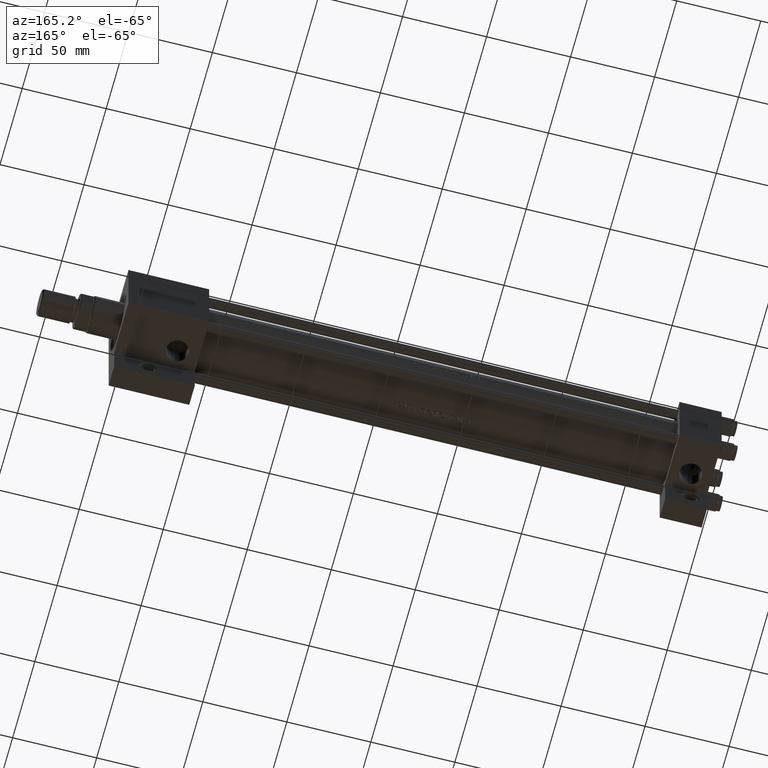
[diagram: clean part render]
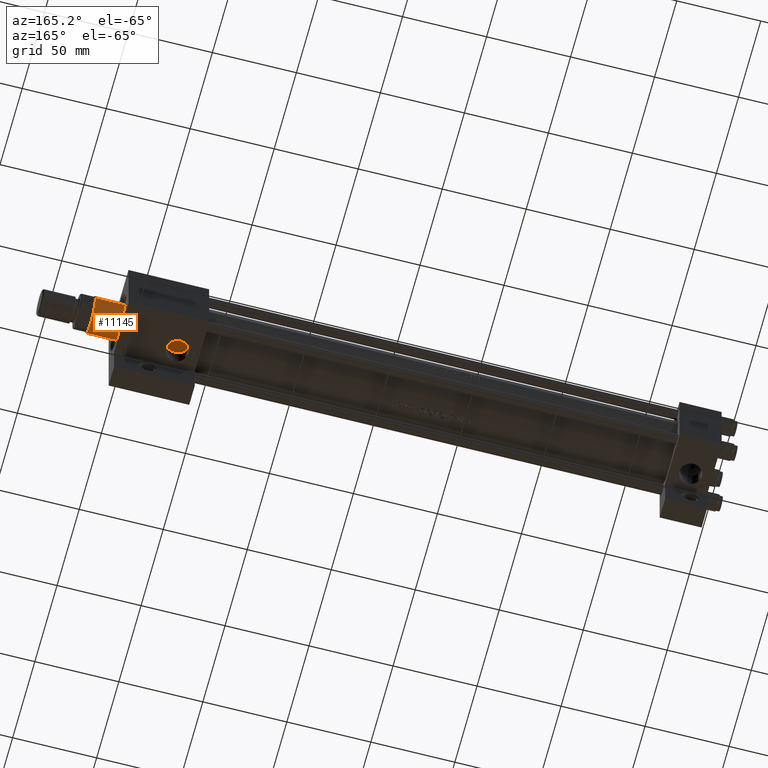
[diagram: same view with one face highlighted and labeled with its STEP entity id]
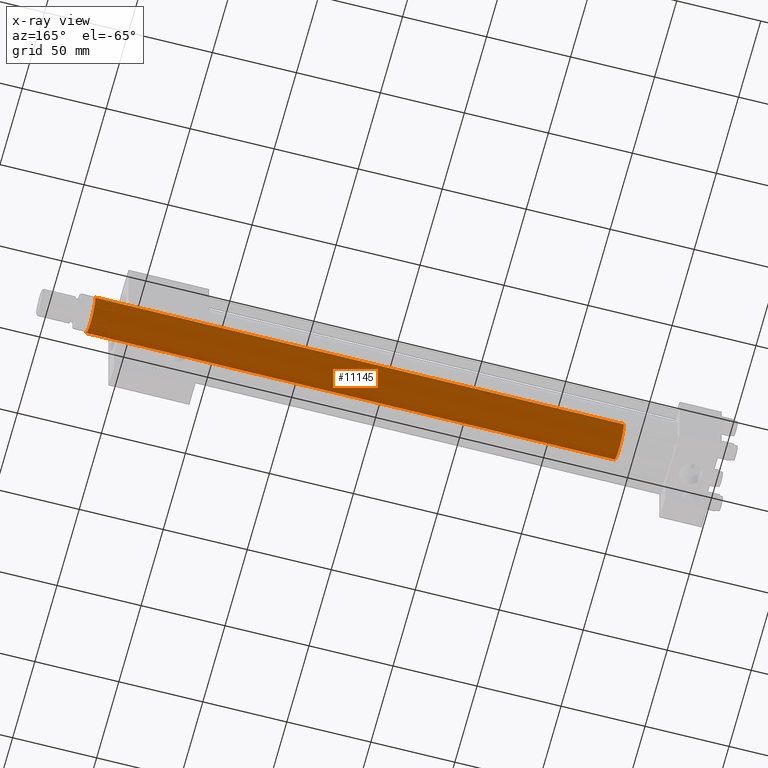
[diagram: x-ray of the same camera — body ghosted, the highlighted face saturated]
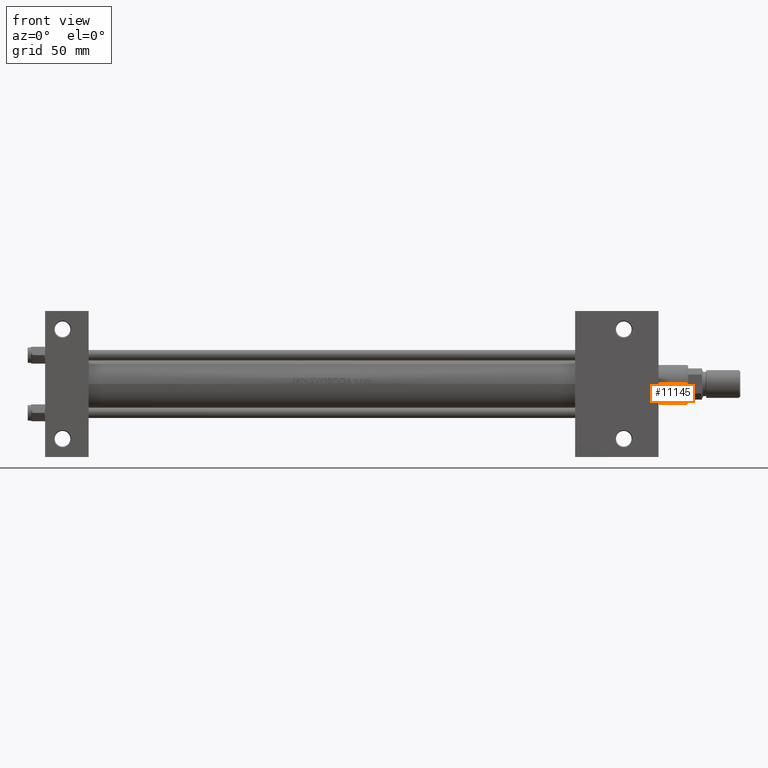
[diagram: same view with one face highlighted and labeled with its STEP entity id]
A machine part, auxiliary view. The second image highlights one B-rep face of the part: STEP entity #11145.
The next image is the same camera in x-ray: the body ghosted, the highlighted face saturated — about 0% of this face is hidden behind the body in this view.
A second angle (front view) of the same face is appended — the face is thin or edge-on in the first view.
In plain terms, the highlighted cylindrical surface (edge-blend (fillet) strip) has radius 11 mm, axis along (-1, 0, 0).
Its self-contained STEP definition (entity closure, byte-faithful):
#1825 = ORIENTED_EDGE ( 'NONE', *, *, #21287, .T. ) ;
#1881 = CARTESIAN_POINT ( 'NONE',  ( 0.000000000000000000, 0.000000000000000000, 30.00000000000000000 ) ) ;
#1926 = FACE_OUTER_BOUND ( 'NONE', #23384, .T. ) ;
#1940 = CIRCLE ( 'NONE', #7389, 11.00000000000000000 ) ;
#4270 = AXIS2_PLACEMENT_3D ( 'NONE', #36177, #24295, #35937 ) ;
#5811 = CARTESIAN_POINT ( 'NONE',  ( 11.00000000000000000, 1.347111479062088405E-15, 345.0000000000000000 ) ) ;
#6215 = CARTESIAN_POINT ( 'NONE',  ( 11.00000000000000000, 1.347111479062088405E-15, 30.00000000000000000 ) ) ;
#6296 = CYLINDRICAL_SURFACE ( 'NONE', #4270, 11.00000000000000000 ) ;
#6835 = VERTEX_POINT ( 'NONE', #6889 ) ;
#6889 = CARTESIAN_POINT ( 'NONE',  ( -11.00000000000000000, 0.000000000000000000, 344.4999999999999432 ) ) ;
#7389 = AXIS2_PLACEMENT_3D ( 'NONE', #41301, #15788, #37659 ) ;
#11145 = ADVANCED_FACE ( 'NONE', ( #1926 ), #6296, .T. ) ;
#13069 = DIRECTION ( 'NONE',  ( 1.000000000000000000, 0.000000000000000000, 0.000000000000000000 ) ) ;
#13830 = CARTESIAN_POINT ( 'NONE',  ( -11.00000000000000000, 0.000000000000000000, 30.00000000000000000 ) ) ;
#15480 = EDGE_CURVE ( 'NONE', #6835, #16646, #1940, .T. ) ;
#15788 = DIRECTION ( 'NONE',  ( 0.000000000000000000, 0.000000000000000000, -1.000000000000000000 ) ) ;
#16646 = VERTEX_POINT ( 'NONE', #24226 ) ;
#20619 = LINE ( 'NONE', #39313, #40296 ) ;
#21287 = EDGE_CURVE ( 'NONE', #33821, #29703, #33955, .T. ) ;
#23384 = EDGE_LOOP ( 'NONE', ( #47245, #24790, #1825, #33223 ) ) ;
#24226 = CARTESIAN_POINT ( 'NONE',  ( 11.00000000000000000, 1.347111479062088405E-15, 344.4999999999999432 ) ) ;
#24295 = DIRECTION ( 'NONE',  ( -0.000000000000000000, -0.000000000000000000, -1.000000000000000000 ) ) ;
#24790 = ORIENTED_EDGE ( 'NONE', *, *, #32926, .T. ) ;
#25483 = EDGE_CURVE ( 'NONE', #6835, #29703, #20619, .T. ) ;
#27228 = VECTOR ( 'NONE', #34739, 1000.000000000000000 ) ;
#29703 = VERTEX_POINT ( 'NONE', #13830 ) ;
#32926 = EDGE_CURVE ( 'NONE', #16646, #33821, #39097, .T. ) ;
#33223 = ORIENTED_EDGE ( 'NONE', *, *, #25483, .F. ) ;
#33821 = VERTEX_POINT ( 'NONE', #6215 ) ;
#33955 = CIRCLE ( 'NONE', #40127, 11.00000000000000000 ) ;
#34739 = DIRECTION ( 'NONE',  ( -0.000000000000000000, -0.000000000000000000, -1.000000000000000000 ) ) ;
#35937 = DIRECTION ( 'NONE',  ( -1.000000000000000000, 0.000000000000000000, 0.000000000000000000 ) ) ;
#36177 = CARTESIAN_POINT ( 'NONE',  ( 0.000000000000000000, 0.000000000000000000, 345.0000000000000000 ) ) ;
#37659 = DIRECTION ( 'NONE',  ( 1.000000000000000000, 0.000000000000000000, 0.000000000000000000 ) ) ;
#39097 = LINE ( 'NONE', #5811, #27228 ) ;
#39313 = CARTESIAN_POINT ( 'NONE',  ( -11.00000000000000000, 0.000000000000000000, 345.0000000000000000 ) ) ;
#40127 = AXIS2_PLACEMENT_3D ( 'NONE', #1881, #46355, #13069 ) ;
#40296 = VECTOR ( 'NONE', #46372, 1000.000000000000000 ) ;
#41301 = CARTESIAN_POINT ( 'NONE',  ( 0.000000000000000000, 0.000000000000000000, 344.4999999999999432 ) ) ;
#46355 = DIRECTION ( 'NONE',  ( 0.000000000000000000, 0.000000000000000000, 1.000000000000000000 ) ) ;
#46372 = DIRECTION ( 'NONE',  ( -0.000000000000000000, -0.000000000000000000, -1.000000000000000000 ) ) ;
#47245 = ORIENTED_EDGE ( 'NONE', *, *, #15480, .T. ) ;